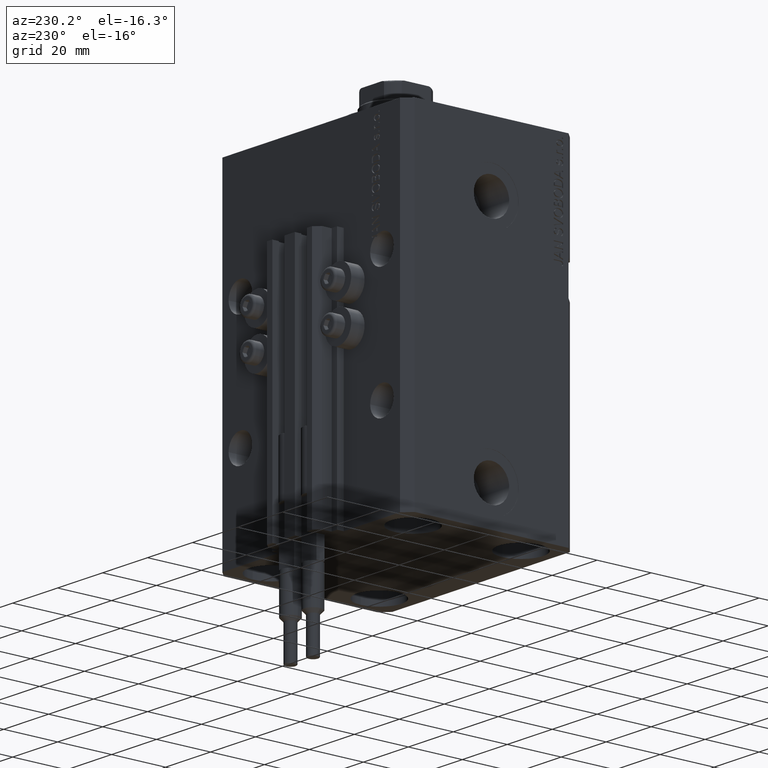
[diagram: clean part render]
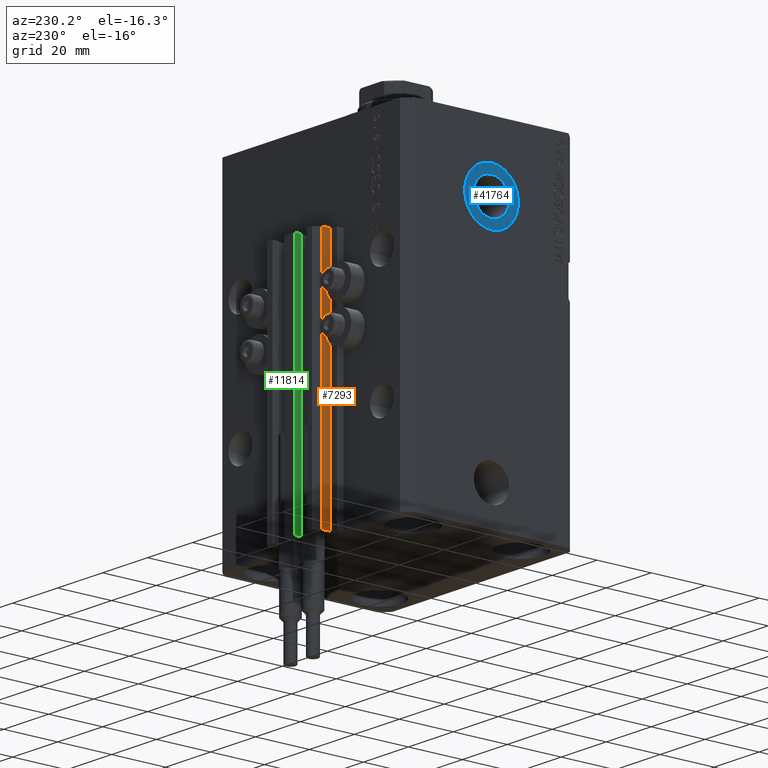
[diagram: same view with three faces highlighted in distinct colors, each labeled with its STEP entity id]
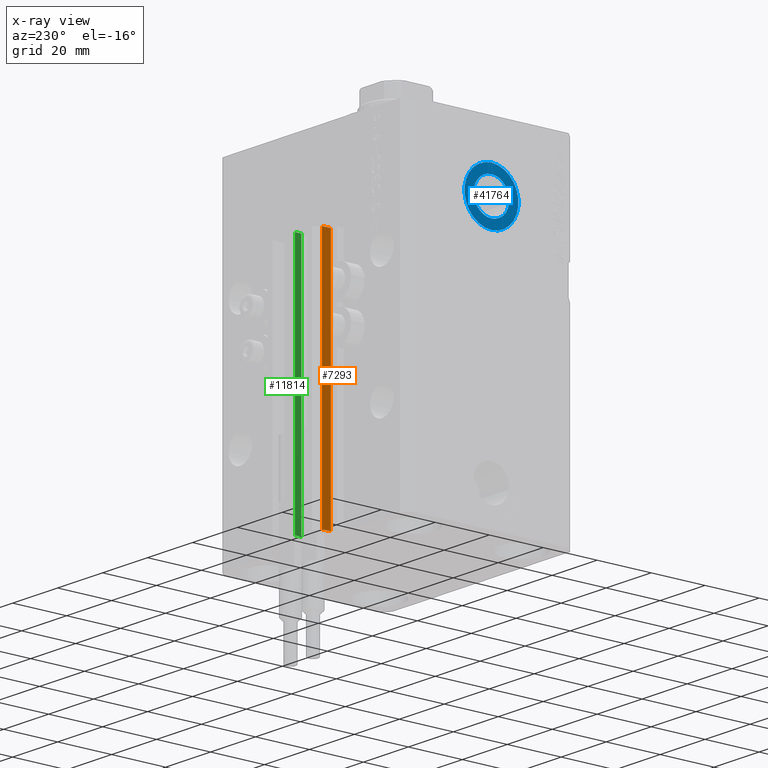
[diagram: x-ray of the same camera — body ghosted, the three highlighted faces saturated]
A machine part, auxiliary view with three faces highlighted in distinct colors.
The next image is the same camera in x-ray (body ghosted, the three faces saturated) — at least one of them is partly hidden behind the body in this view.
Their STEP definitions:

[orange] entity #7293 — the highlighted planar face has unit normal (-1, 0, 0).
#1167 = LINE ( 'NONE', #23914, #10689 ) ;
#1954 = CARTESIAN_POINT ( 'NONE',  ( -12.00000000000000000, 37.49999999999999289, -123.0000000000000000 ) ) ;
#7293 = ADVANCED_FACE ( 'NONE', ( #38540 ), #11366, .T. ) ;
#7402 = AXIS2_PLACEMENT_3D ( 'NONE', #26458, #37835, #26937 ) ;
#7732 = EDGE_CURVE ( 'NONE', #25718, #41468, #25537, .T. ) ;
#8533 = VERTEX_POINT ( 'NONE', #14177 ) ;
#9050 = VECTOR ( 'NONE', #43766, 1000.000000000000000 ) ;
#9456 = VERTEX_POINT ( 'NONE', #15240 ) ;
#10689 = VECTOR ( 'NONE', #34812, 1000.000000000000000 ) ;
#10703 = LINE ( 'NONE', #17398, #12798 ) ;
#11366 = PLANE ( 'NONE',  #7402 ) ;
#12798 = VECTOR ( 'NONE', #25296, 1000.000000000000000 ) ;
#14177 = CARTESIAN_POINT ( 'NONE',  ( -12.00000000000000000, 37.49999999999999289, -123.0000000000000000 ) ) ;
#14640 = DIRECTION ( 'NONE',  ( 0.000000000000000000, 0.000000000000000000, 1.000000000000000000 ) ) ;
#15240 = CARTESIAN_POINT ( 'NONE',  ( -12.00000000000000000, 37.49999999999999289, -33.00000000000000000 ) ) ;
#17398 = CARTESIAN_POINT ( 'NONE',  ( -12.00000000000000000, 37.49999999999999289, -33.00000000000000000 ) ) ;
#20837 = EDGE_CURVE ( 'NONE', #9456, #41468, #10703, .T. ) ;
#22120 = EDGE_LOOP ( 'NONE', ( #47359, #46810, #35096, #42067 ) ) ;
#23914 = CARTESIAN_POINT ( 'NONE',  ( -12.00000000000000000, 37.49999999999999289, -123.0000000000000000 ) ) ;
#25296 = DIRECTION ( 'NONE',  ( 0.000000000000000000, -1.000000000000000000, 0.000000000000000000 ) ) ;
#25537 = LINE ( 'NONE', #37164, #31112 ) ;
#25718 = VERTEX_POINT ( 'NONE', #29322 ) ;
#26458 = CARTESIAN_POINT ( 'NONE',  ( -12.00000000000000000, 37.49999999999999289, -123.0000000000000000 ) ) ;
#26937 = DIRECTION ( 'NONE',  ( 0.000000000000000000, 0.000000000000000000, 1.000000000000000000 ) ) ;
#29322 = CARTESIAN_POINT ( 'NONE',  ( -12.00000000000000000, 34.19999999999999574, -123.0000000000000000 ) ) ;
#30129 = EDGE_CURVE ( 'NONE', #8533, #25718, #40036, .T. ) ;
#30130 = CARTESIAN_POINT ( 'NONE',  ( -12.00000000000000000, 34.19999999999999574, -33.00000000000000000 ) ) ;
#31112 = VECTOR ( 'NONE', #14640, 1000.000000000000000 ) ;
#31142 = EDGE_CURVE ( 'NONE', #8533, #9456, #1167, .T. ) ;
#34812 = DIRECTION ( 'NONE',  ( 0.000000000000000000, 0.000000000000000000, 1.000000000000000000 ) ) ;
#35096 = ORIENTED_EDGE ( 'NONE', *, *, #30129, .T. ) ;
#37164 = CARTESIAN_POINT ( 'NONE',  ( -12.00000000000000000, 34.19999999999999574, -123.0000000000000000 ) ) ;
#37835 = DIRECTION ( 'NONE',  ( -1.000000000000000000, 0.000000000000000000, 0.000000000000000000 ) ) ;
#38540 = FACE_OUTER_BOUND ( 'NONE', #22120, .T. ) ;
#40036 = LINE ( 'NONE', #1954, #9050 ) ;
#41468 = VERTEX_POINT ( 'NONE', #30130 ) ;
#42067 = ORIENTED_EDGE ( 'NONE', *, *, #7732, .T. ) ;
#43766 = DIRECTION ( 'NONE',  ( 0.000000000000000000, -1.000000000000000000, 0.000000000000000000 ) ) ;
#46810 = ORIENTED_EDGE ( 'NONE', *, *, #31142, .F. ) ;
#47359 = ORIENTED_EDGE ( 'NONE', *, *, #20837, .F. ) ;

[blue] entity #41764 — the highlighted planar face has unit normal (-1, 0, 0).
#689 = AXIS2_PLACEMENT_3D ( 'NONE', #32807, #48146, #25379 ) ;
#2384 = PLANE ( 'NONE',  #689 ) ;
#4996 = EDGE_CURVE ( 'NONE', #9092, #11323, #28614, .T. ) ;
#5174 = CARTESIAN_POINT ( 'NONE',  ( -42.39999999999999858, -3.469446951953614189E-15, -17.42000000000000171 ) ) ;
#5369 = CARTESIAN_POINT ( 'NONE',  ( -42.39999999999999858, -2.663629358114655936E-15, -30.57999999999999829 ) ) ;
#9092 = VERTEX_POINT ( 'NONE', #5174 ) ;
#10047 = FACE_OUTER_BOUND ( 'NONE', #40700, .T. ) ;
#10758 = DIRECTION ( 'NONE',  ( 0.000000000000000000, 0.000000000000000000, 1.000000000000000000 ) ) ;
#11323 = VERTEX_POINT ( 'NONE', #5369 ) ;
#11902 = DIRECTION ( 'NONE',  ( -1.000000000000000000, 0.000000000000000000, 0.000000000000000000 ) ) ;
#14351 = VERTEX_POINT ( 'NONE', #47047 ) ;
#14643 = CARTESIAN_POINT ( 'NONE',  ( -42.39999999999999858, -3.469446951953614189E-15, -24.00000000000000000 ) ) ;
#15721 = DIRECTION ( 'NONE',  ( -1.000000000000000000, 0.000000000000000000, 0.000000000000000000 ) ) ;
#16687 = ORIENTED_EDGE ( 'NONE', *, *, #46787, .T. ) ;
#17467 = CIRCLE ( 'NONE', #30878, 10.00000000000000000 ) ;
#17630 = VERTEX_POINT ( 'NONE', #34084 ) ;
#22055 = CIRCLE ( 'NONE', #27580, 6.579999999999999183 ) ;
#22338 = AXIS2_PLACEMENT_3D ( 'NONE', #23404, #38497, #46170 ) ;
#22385 = CARTESIAN_POINT ( 'NONE',  ( -42.39999999999999858, -3.469446951953614189E-15, -24.00000000000000000 ) ) ;
#23404 = CARTESIAN_POINT ( 'NONE',  ( -42.39999999999999858, -3.469446951953614189E-15, -24.00000000000000000 ) ) ;
#23603 = CARTESIAN_POINT ( 'NONE',  ( -42.39999999999999858, -3.469446951953614189E-15, -24.00000000000000000 ) ) ;
#25379 = DIRECTION ( 'NONE',  ( 0.000000000000000000, 0.000000000000000000, 1.000000000000000000 ) ) ;
#27580 = AXIS2_PLACEMENT_3D ( 'NONE', #23603, #15721, #31037 ) ;
#28614 = CIRCLE ( 'NONE', #22338, 6.579999999999999183 ) ;
#28842 = FACE_BOUND ( 'NONE', #34876, .T. ) ;
#30710 = DIRECTION ( 'NONE',  ( 0.000000000000000000, 0.000000000000000000, 1.000000000000000000 ) ) ;
#30878 = AXIS2_PLACEMENT_3D ( 'NONE', #14643, #11902, #30710 ) ;
#31037 = DIRECTION ( 'NONE',  ( 0.000000000000000000, 0.000000000000000000, 1.000000000000000000 ) ) ;
#32619 = ORIENTED_EDGE ( 'NONE', *, *, #42815, .F. ) ;
#32807 = CARTESIAN_POINT ( 'NONE',  ( -42.39999999999999858, -3.469446951953614189E-15, -24.00000000000000000 ) ) ;
#33989 = AXIS2_PLACEMENT_3D ( 'NONE', #22385, #48614, #10758 ) ;
#34084 = CARTESIAN_POINT ( 'NONE',  ( -42.39999999999999858, -3.469446951953614189E-15, -14.00000000000000000 ) ) ;
#34876 = EDGE_LOOP ( 'NONE', ( #47982, #32619 ) ) ;
#38497 = DIRECTION ( 'NONE',  ( -1.000000000000000000, 0.000000000000000000, 0.000000000000000000 ) ) ;
#40700 = EDGE_LOOP ( 'NONE', ( #16687, #45695 ) ) ;
#41764 = ADVANCED_FACE ( 'NONE', ( #28842, #10047 ), #2384, .T. ) ;
#42815 = EDGE_CURVE ( 'NONE', #11323, #9092, #22055, .T. ) ;
#44510 = EDGE_CURVE ( 'NONE', #14351, #17630, #45054, .T. ) ;
#45054 = CIRCLE ( 'NONE', #33989, 10.00000000000000000 ) ;
#45695 = ORIENTED_EDGE ( 'NONE', *, *, #44510, .T. ) ;
#46170 = DIRECTION ( 'NONE',  ( 0.000000000000000000, 0.000000000000000000, 1.000000000000000000 ) ) ;
#46787 = EDGE_CURVE ( 'NONE', #17630, #14351, #17467, .T. ) ;
#47047 = CARTESIAN_POINT ( 'NONE',  ( -42.39999999999999858, -2.244800152806261524E-15, -34.00000000000000000 ) ) ;
#47982 = ORIENTED_EDGE ( 'NONE', *, *, #4996, .F. ) ;
#48146 = DIRECTION ( 'NONE',  ( -1.000000000000000000, 0.000000000000000000, 0.000000000000000000 ) ) ;
#48614 = DIRECTION ( 'NONE',  ( -1.000000000000000000, 0.000000000000000000, 0.000000000000000000 ) ) ;

[green] entity #11814 — the highlighted planar face has unit normal (-1, -0, 0).
#195 = LINE ( 'NONE', #44731, #41739 ) ;
#981 = CARTESIAN_POINT ( 'NONE',  ( -2.350000000000003197, 37.10000000000000853, -123.0000000000000000 ) ) ;
#1109 = CARTESIAN_POINT ( 'NONE',  ( -2.350000000000003642, 39.50000000000000711, -33.00000000000000000 ) ) ;
#1706 = ORIENTED_EDGE ( 'NONE', *, *, #40355, .T. ) ;
#3035 = AXIS2_PLACEMENT_3D ( 'NONE', #14124, #21070, #6952 ) ;
#4580 = ORIENTED_EDGE ( 'NONE', *, *, #12328, .F. ) ;
#4608 = VECTOR ( 'NONE', #32821, 1000.000000000000000 ) ;
#5361 = LINE ( 'NONE', #43225, #4608 ) ;
#6649 = LINE ( 'NONE', #6889, #9258 ) ;
#6876 = DIRECTION ( 'NONE',  ( 0.000000000000000000, 0.000000000000000000, 1.000000000000000000 ) ) ;
#6889 = CARTESIAN_POINT ( 'NONE',  ( -2.350000000000003642, 39.50000000000000711, -123.0000000000000000 ) ) ;
#6952 = DIRECTION ( 'NONE',  ( 1.807003620809174878E-16, -1.000000000000000000, 0.000000000000000000 ) ) ;
#9258 = VECTOR ( 'NONE', #36833, 1000.000000000000000 ) ;
#11814 = ADVANCED_FACE ( 'NONE', ( #47792 ), #29455, .T. ) ;
#12328 = EDGE_CURVE ( 'NONE', #39702, #33075, #5361, .T. ) ;
#14124 = CARTESIAN_POINT ( 'NONE',  ( -2.350000000000003642, 39.50000000000000711, -123.0000000000000000 ) ) ;
#14191 = EDGE_LOOP ( 'NONE', ( #4580, #45766, #47065, #1706 ) ) ;
#14467 = VERTEX_POINT ( 'NONE', #15367 ) ;
#15367 = CARTESIAN_POINT ( 'NONE',  ( -2.350000000000003642, 39.50000000000000711, -123.0000000000000000 ) ) ;
#17121 = CARTESIAN_POINT ( 'NONE',  ( -2.350000000000003642, 39.50000000000000711, -123.0000000000000000 ) ) ;
#21070 = DIRECTION ( 'NONE',  ( -1.000000000000000000, -1.807003620809174878E-16, 0.000000000000000000 ) ) ;
#24041 = DIRECTION ( 'NONE',  ( 0.000000000000000000, 0.000000000000000000, 1.000000000000000000 ) ) ;
#25560 = VECTOR ( 'NONE', #24041, 1000.000000000000000 ) ;
#27087 = EDGE_CURVE ( 'NONE', #14467, #39702, #38640, .T. ) ;
#28635 = CARTESIAN_POINT ( 'NONE',  ( -2.350000000000003197, 37.10000000000000853, -33.00000000000000000 ) ) ;
#29455 = PLANE ( 'NONE',  #3035 ) ;
#32821 = DIRECTION ( 'NONE',  ( 1.807003620809174632E-16, -1.000000000000000000, 0.000000000000000000 ) ) ;
#33075 = VERTEX_POINT ( 'NONE', #28635 ) ;
#36833 = DIRECTION ( 'NONE',  ( 1.807003620809174632E-16, -1.000000000000000000, 0.000000000000000000 ) ) ;
#38238 = VERTEX_POINT ( 'NONE', #981 ) ;
#38502 = EDGE_CURVE ( 'NONE', #14467, #38238, #6649, .T. ) ;
#38640 = LINE ( 'NONE', #17121, #25560 ) ;
#39702 = VERTEX_POINT ( 'NONE', #1109 ) ;
#40355 = EDGE_CURVE ( 'NONE', #38238, #33075, #195, .T. ) ;
#41739 = VECTOR ( 'NONE', #6876, 1000.000000000000000 ) ;
#43225 = CARTESIAN_POINT ( 'NONE',  ( -2.350000000000003642, 39.50000000000000711, -33.00000000000000000 ) ) ;
#44731 = CARTESIAN_POINT ( 'NONE',  ( -2.350000000000003197, 37.10000000000000853, -123.0000000000000000 ) ) ;
#45766 = ORIENTED_EDGE ( 'NONE', *, *, #27087, .F. ) ;
#47065 = ORIENTED_EDGE ( 'NONE', *, *, #38502, .T. ) ;
#47792 = FACE_OUTER_BOUND ( 'NONE', #14191, .T. ) ;